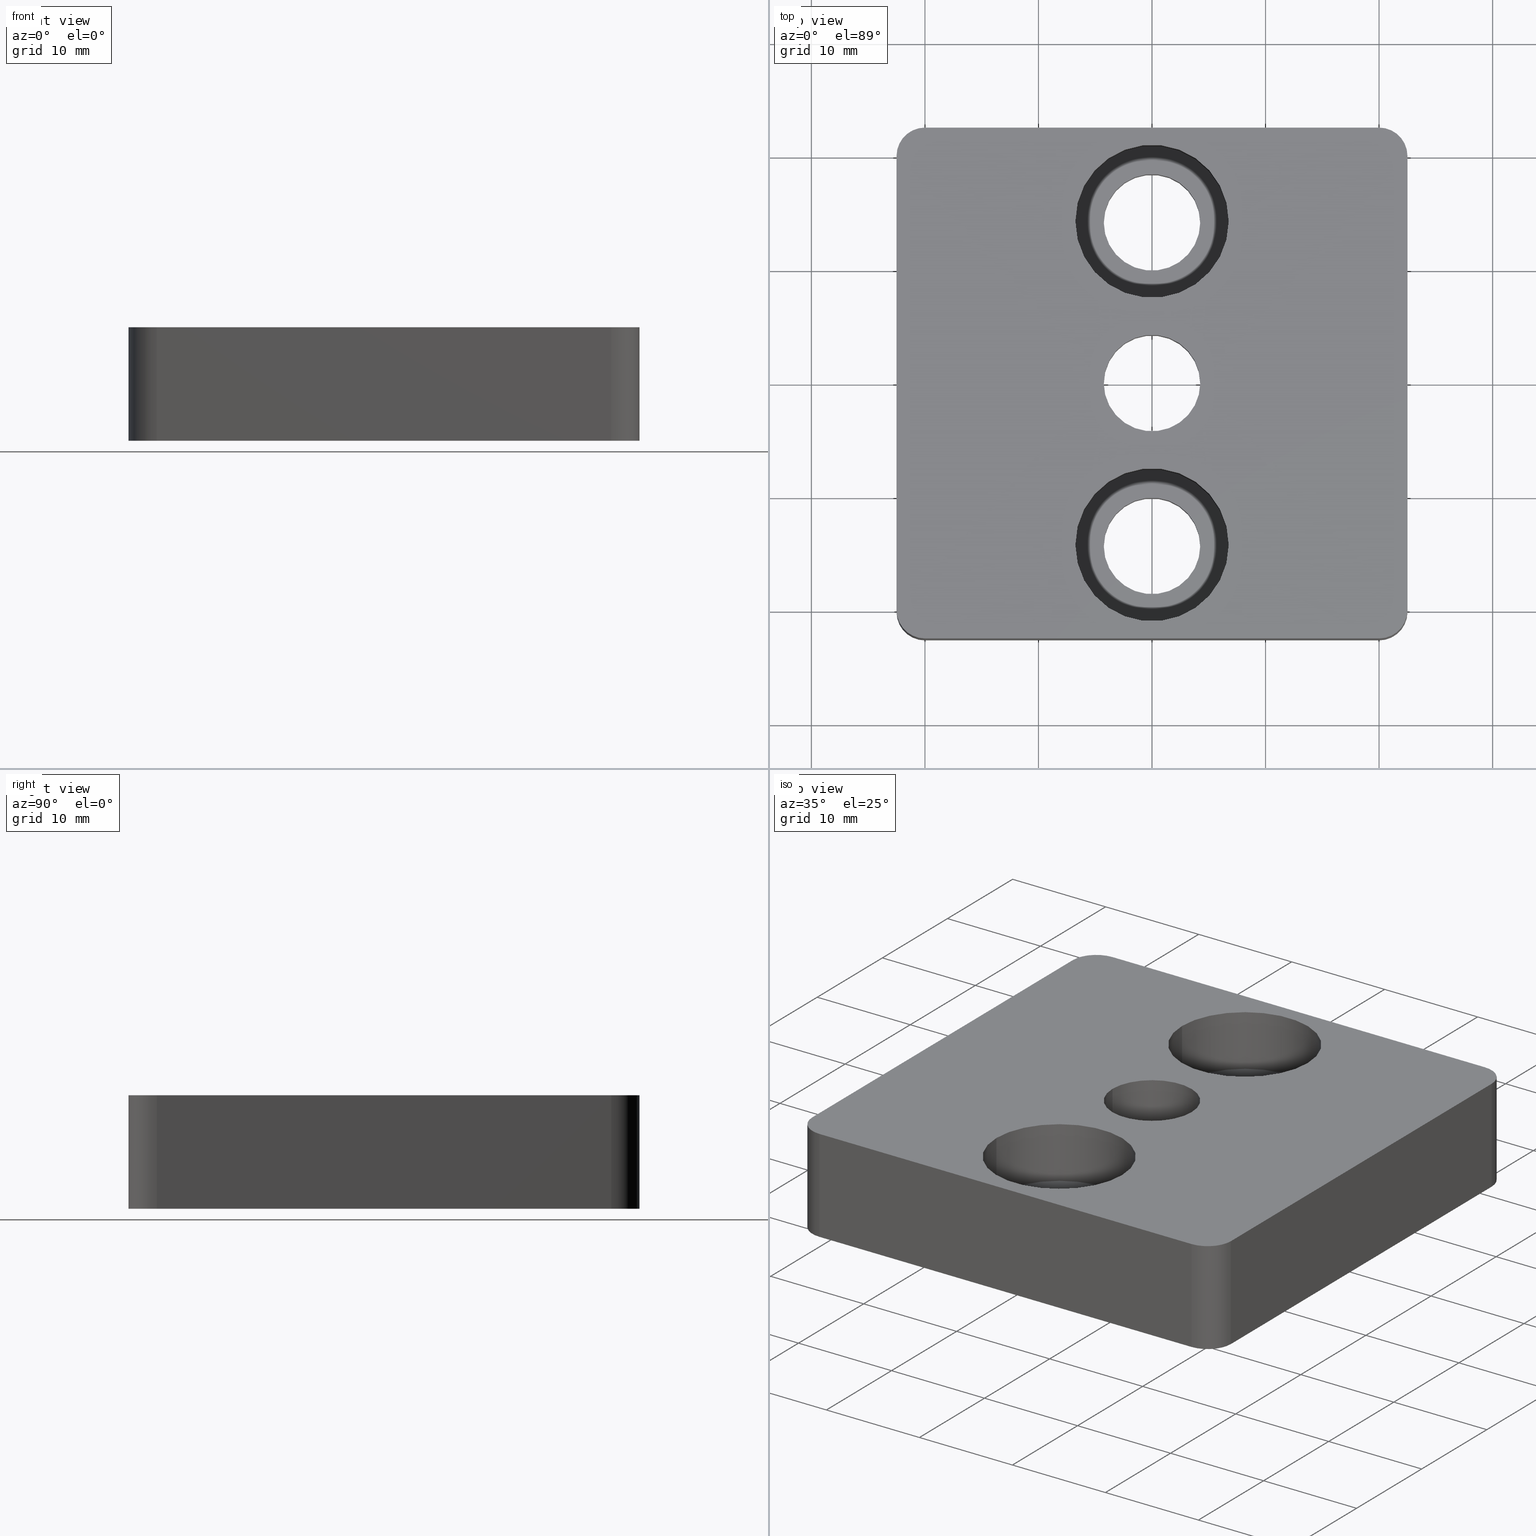
[diagram: canonical four-view strip — front | top / right | iso, engineering-drawing reading convention]
A machine part, canonical four-view strip (front | top / right | iso — engineering-drawing reading convention). The complete STEP part file that produces these views, byte-faithful:
ISO-10303-21;
HEADER;
/* Generated by software containing ST-Developer
 * from STEP Tools, Inc. (www.steptools.com) 
 */

FILE_DESCRIPTION(
/* description */ ('PIASTRA DI FISS SCORR.45X45'),
/* implementation_level */ '2;1');

FILE_NAME(
/* name */ 
'Q:\\Catalogo\\2_Accessori Dierre\\Per Download Web e catalogo cartace
o\\CATALOGO ELEMENTI ASSEMBLAGGIO\\PAGINA 39\\DPSXX0000491.stp',
/* time_stamp */ '2018-07-20T11:00:21+02:00',
/* author */ ('fzagni'),
/* organization */ (''),
/* preprocessor_version */ 'ST-DEVELOPER v16.1',
/* originating_system */ 'Autodesk Inventor 2016',
/* authorisation */ '');

FILE_SCHEMA (('AUTOMOTIVE_DESIGN { 1 0 10303 214 3 1 1 }'));
ENDSEC;

DATA;
#10=MECHANICAL_DESIGN_GEOMETRIC_PRESENTATION_REPRESENTATION('',(#13),#533);
#11=SHAPE_REPRESENTATION_RELATIONSHIP('SRR','None',#542,#12);
#12=ADVANCED_BREP_SHAPE_REPRESENTATION('',(#14),#532);
#13=STYLED_ITEM('',(#551),#14);
#14=MANIFOLD_SOLID_BREP('None',#309);
#15=FACE_BOUND('',#67,.T.);
#16=FACE_BOUND('',#68,.T.);
#17=FACE_BOUND('',#69,.T.);
#18=FACE_BOUND('',#71,.T.);
#19=FACE_BOUND('',#72,.T.);
#20=FACE_BOUND('',#73,.T.);
#21=FACE_BOUND('',#75,.T.);
#22=FACE_BOUND('',#77,.T.);
#23=FACE_BOUND('',#79,.T.);
#24=FACE_BOUND('',#81,.T.);
#25=FACE_BOUND('',#83,.T.);
#26=FACE_BOUND('',#85,.T.);
#27=FACE_BOUND('',#87,.T.);
#28=FACE_BOUND('',#89,.T.);
#29=FACE_BOUND('',#91,.T.);
#30=PLANE('',#314);
#31=PLANE('',#318);
#32=PLANE('',#322);
#33=PLANE('',#326);
#34=PLANE('',#327);
#35=PLANE('',#331);
#36=PLANE('',#337);
#37=PLANE('',#342);
#38=PLANE('',#347);
#39=FACE_OUTER_BOUND('',#58,.T.);
#40=FACE_OUTER_BOUND('',#59,.T.);
#41=FACE_OUTER_BOUND('',#60,.T.);
#42=FACE_OUTER_BOUND('',#61,.T.);
#43=FACE_OUTER_BOUND('',#62,.T.);
#44=FACE_OUTER_BOUND('',#63,.T.);
#45=FACE_OUTER_BOUND('',#64,.T.);
#46=FACE_OUTER_BOUND('',#65,.T.);
#47=FACE_OUTER_BOUND('',#66,.T.);
#48=FACE_OUTER_BOUND('',#70,.T.);
#49=FACE_OUTER_BOUND('',#74,.T.);
#50=FACE_OUTER_BOUND('',#76,.T.);
#51=FACE_OUTER_BOUND('',#78,.T.);
#52=FACE_OUTER_BOUND('',#80,.T.);
#53=FACE_OUTER_BOUND('',#82,.T.);
#54=FACE_OUTER_BOUND('',#84,.T.);
#55=FACE_OUTER_BOUND('',#86,.T.);
#56=FACE_OUTER_BOUND('',#88,.T.);
#57=FACE_OUTER_BOUND('',#90,.T.);
#58=EDGE_LOOP('',(#208,#209,#210,#211));
#59=EDGE_LOOP('',(#212,#213,#214,#215));
#60=EDGE_LOOP('',(#216,#217,#218,#219));
#61=EDGE_LOOP('',(#220,#221,#222,#223));
#62=EDGE_LOOP('',(#224,#225,#226,#227));
#63=EDGE_LOOP('',(#228,#229,#230,#231));
#64=EDGE_LOOP('',(#232,#233,#234,#235));
#65=EDGE_LOOP('',(#236,#237,#238,#239));
#66=EDGE_LOOP('',(#240,#241,#242,#243,#244,#245,#246,#247));
#67=EDGE_LOOP('',(#248));
#68=EDGE_LOOP('',(#249));
#69=EDGE_LOOP('',(#250));
#70=EDGE_LOOP('',(#251,#252,#253,#254,#255,#256,#257,#258));
#71=EDGE_LOOP('',(#259));
#72=EDGE_LOOP('',(#260));
#73=EDGE_LOOP('',(#261));
#74=EDGE_LOOP('',(#262));
#75=EDGE_LOOP('',(#263));
#76=EDGE_LOOP('',(#264));
#77=EDGE_LOOP('',(#265));
#78=EDGE_LOOP('',(#266));
#79=EDGE_LOOP('',(#267));
#80=EDGE_LOOP('',(#268));
#81=EDGE_LOOP('',(#269));
#82=EDGE_LOOP('',(#270));
#83=EDGE_LOOP('',(#271));
#84=EDGE_LOOP('',(#272));
#85=EDGE_LOOP('',(#273));
#86=EDGE_LOOP('',(#274));
#87=EDGE_LOOP('',(#275));
#88=EDGE_LOOP('',(#276));
#89=EDGE_LOOP('',(#277));
#90=EDGE_LOOP('',(#278));
#91=EDGE_LOOP('',(#279));
#92=CIRCLE('',#312,2.49999999999);
#93=CIRCLE('',#313,2.49999999999);
#94=CIRCLE('',#316,2.49999999999);
#95=CIRCLE('',#317,2.49999999999);
#96=CIRCLE('',#320,2.49999999999);
#97=CIRCLE('',#321,2.49999999999);
#98=CIRCLE('',#324,2.49999999999);
#99=CIRCLE('',#325,2.49999999999);
#100=CIRCLE('',#328,6.74999999997317);
#101=CIRCLE('',#329,6.74999999997317);
#102=CIRCLE('',#330,4.24999999998317);
#103=CIRCLE('',#332,4.24999999998317);
#104=CIRCLE('',#333,4.24999999998317);
#105=CIRCLE('',#334,6.74999999997317);
#106=CIRCLE('',#336,4.24999999998317);
#107=CIRCLE('',#338,6.74999999997317);
#108=CIRCLE('',#341,4.24999999998317);
#109=CIRCLE('',#343,6.74999999997317);
#110=CIRCLE('',#346,4.24999999998317);
#111=CIRCLE('',#348,6.74999999997317);
#112=LINE('',#450,#128);
#113=LINE('',#454,#129);
#114=LINE('',#458,#130);
#115=LINE('',#460,#131);
#116=LINE('',#461,#132);
#117=LINE('',#466,#133);
#118=LINE('',#470,#134);
#119=LINE('',#472,#135);
#120=LINE('',#473,#136);
#121=LINE('',#478,#137);
#122=LINE('',#482,#138);
#123=LINE('',#484,#139);
#124=LINE('',#485,#140);
#125=LINE('',#490,#141);
#126=LINE('',#493,#142);
#127=LINE('',#494,#143);
#128=VECTOR('',#354,10.);
#129=VECTOR('',#357,10.);
#130=VECTOR('',#362,39.9999999998399);
#131=VECTOR('',#363,10.);
#132=VECTOR('',#364,39.9999999998399);
#133=VECTOR('',#369,10.);
#134=VECTOR('',#374,39.9999999998399);
#135=VECTOR('',#375,10.);
#136=VECTOR('',#376,39.9999999998399);
#137=VECTOR('',#381,10.);
#138=VECTOR('',#386,39.9999999998399);
#139=VECTOR('',#387,10.);
#140=VECTOR('',#388,39.9999999998399);
#141=VECTOR('',#393,10.);
#142=VECTOR('',#398,39.9999999998399);
#143=VECTOR('',#399,39.9999999998399);
#144=VERTEX_POINT('',#448);
#145=VERTEX_POINT('',#449);
#146=VERTEX_POINT('',#451);
#147=VERTEX_POINT('',#453);
#148=VERTEX_POINT('',#457);
#149=VERTEX_POINT('',#459);
#150=VERTEX_POINT('',#463);
#151=VERTEX_POINT('',#465);
#152=VERTEX_POINT('',#469);
#153=VERTEX_POINT('',#471);
#154=VERTEX_POINT('',#475);
#155=VERTEX_POINT('',#477);
#156=VERTEX_POINT('',#481);
#157=VERTEX_POINT('',#483);
#158=VERTEX_POINT('',#487);
#159=VERTEX_POINT('',#489);
#160=VERTEX_POINT('',#496);
#161=VERTEX_POINT('',#498);
#162=VERTEX_POINT('',#500);
#163=VERTEX_POINT('',#503);
#164=VERTEX_POINT('',#505);
#165=VERTEX_POINT('',#507);
#166=VERTEX_POINT('',#510);
#167=VERTEX_POINT('',#513);
#168=VERTEX_POINT('',#517);
#169=VERTEX_POINT('',#520);
#170=VERTEX_POINT('',#524);
#171=VERTEX_POINT('',#527);
#172=EDGE_CURVE('',#144,#145,#112,.T.);
#173=EDGE_CURVE('',#145,#146,#92,.T.);
#174=EDGE_CURVE('',#147,#146,#113,.T.);
#175=EDGE_CURVE('',#144,#147,#93,.T.);
#176=EDGE_CURVE('',#146,#148,#114,.T.);
#177=EDGE_CURVE('',#149,#148,#115,.T.);
#178=EDGE_CURVE('',#147,#149,#116,.T.);
#179=EDGE_CURVE('',#148,#150,#94,.T.);
#180=EDGE_CURVE('',#151,#150,#117,.T.);
#181=EDGE_CURVE('',#149,#151,#95,.T.);
#182=EDGE_CURVE('',#150,#152,#118,.T.);
#183=EDGE_CURVE('',#153,#152,#119,.T.);
#184=EDGE_CURVE('',#151,#153,#120,.T.);
#185=EDGE_CURVE('',#152,#154,#96,.T.);
#186=EDGE_CURVE('',#155,#154,#121,.T.);
#187=EDGE_CURVE('',#153,#155,#97,.T.);
#188=EDGE_CURVE('',#154,#156,#122,.T.);
#189=EDGE_CURVE('',#157,#156,#123,.T.);
#190=EDGE_CURVE('',#155,#157,#124,.T.);
#191=EDGE_CURVE('',#156,#158,#98,.T.);
#192=EDGE_CURVE('',#159,#158,#125,.T.);
#193=EDGE_CURVE('',#157,#159,#99,.T.);
#194=EDGE_CURVE('',#158,#145,#126,.T.);
#195=EDGE_CURVE('',#159,#144,#127,.T.);
#196=EDGE_CURVE('',#160,#160,#100,.T.);
#197=EDGE_CURVE('',#161,#161,#101,.T.);
#198=EDGE_CURVE('',#162,#162,#102,.T.);
#199=EDGE_CURVE('',#163,#163,#103,.T.);
#200=EDGE_CURVE('',#164,#164,#104,.T.);
#201=EDGE_CURVE('',#165,#165,#105,.T.);
#202=EDGE_CURVE('',#166,#166,#106,.T.);
#203=EDGE_CURVE('',#167,#167,#107,.T.);
#204=EDGE_CURVE('',#168,#168,#108,.T.);
#205=EDGE_CURVE('',#169,#169,#109,.T.);
#206=EDGE_CURVE('',#170,#170,#110,.T.);
#207=EDGE_CURVE('',#171,#171,#111,.T.);
#208=ORIENTED_EDGE('',*,*,#172,.T.);
#209=ORIENTED_EDGE('',*,*,#173,.T.);
#210=ORIENTED_EDGE('',*,*,#174,.F.);
#211=ORIENTED_EDGE('',*,*,#175,.F.);
#212=ORIENTED_EDGE('',*,*,#174,.T.);
#213=ORIENTED_EDGE('',*,*,#176,.T.);
#214=ORIENTED_EDGE('',*,*,#177,.F.);
#215=ORIENTED_EDGE('',*,*,#178,.F.);
#216=ORIENTED_EDGE('',*,*,#177,.T.);
#217=ORIENTED_EDGE('',*,*,#179,.T.);
#218=ORIENTED_EDGE('',*,*,#180,.F.);
#219=ORIENTED_EDGE('',*,*,#181,.F.);
#220=ORIENTED_EDGE('',*,*,#180,.T.);
#221=ORIENTED_EDGE('',*,*,#182,.T.);
#222=ORIENTED_EDGE('',*,*,#183,.F.);
#223=ORIENTED_EDGE('',*,*,#184,.F.);
#224=ORIENTED_EDGE('',*,*,#183,.T.);
#225=ORIENTED_EDGE('',*,*,#185,.T.);
#226=ORIENTED_EDGE('',*,*,#186,.F.);
#227=ORIENTED_EDGE('',*,*,#187,.F.);
#228=ORIENTED_EDGE('',*,*,#186,.T.);
#229=ORIENTED_EDGE('',*,*,#188,.T.);
#230=ORIENTED_EDGE('',*,*,#189,.F.);
#231=ORIENTED_EDGE('',*,*,#190,.F.);
#232=ORIENTED_EDGE('',*,*,#189,.T.);
#233=ORIENTED_EDGE('',*,*,#191,.T.);
#234=ORIENTED_EDGE('',*,*,#192,.F.);
#235=ORIENTED_EDGE('',*,*,#193,.F.);
#236=ORIENTED_EDGE('',*,*,#192,.T.);
#237=ORIENTED_EDGE('',*,*,#194,.T.);
#238=ORIENTED_EDGE('',*,*,#172,.F.);
#239=ORIENTED_EDGE('',*,*,#195,.F.);
#240=ORIENTED_EDGE('',*,*,#175,.T.);
#241=ORIENTED_EDGE('',*,*,#178,.T.);
#242=ORIENTED_EDGE('',*,*,#181,.T.);
#243=ORIENTED_EDGE('',*,*,#184,.T.);
#244=ORIENTED_EDGE('',*,*,#187,.T.);
#245=ORIENTED_EDGE('',*,*,#190,.T.);
#246=ORIENTED_EDGE('',*,*,#193,.T.);
#247=ORIENTED_EDGE('',*,*,#195,.T.);
#248=ORIENTED_EDGE('',*,*,#196,.F.);
#249=ORIENTED_EDGE('',*,*,#197,.F.);
#250=ORIENTED_EDGE('',*,*,#198,.F.);
#251=ORIENTED_EDGE('',*,*,#194,.F.);
#252=ORIENTED_EDGE('',*,*,#191,.F.);
#253=ORIENTED_EDGE('',*,*,#188,.F.);
#254=ORIENTED_EDGE('',*,*,#185,.F.);
#255=ORIENTED_EDGE('',*,*,#182,.F.);
#256=ORIENTED_EDGE('',*,*,#179,.F.);
#257=ORIENTED_EDGE('',*,*,#176,.F.);
#258=ORIENTED_EDGE('',*,*,#173,.F.);
#259=ORIENTED_EDGE('',*,*,#199,.T.);
#260=ORIENTED_EDGE('',*,*,#200,.T.);
#261=ORIENTED_EDGE('',*,*,#201,.F.);
#262=ORIENTED_EDGE('',*,*,#199,.F.);
#263=ORIENTED_EDGE('',*,*,#202,.T.);
#264=ORIENTED_EDGE('',*,*,#203,.T.);
#265=ORIENTED_EDGE('',*,*,#202,.F.);
#266=ORIENTED_EDGE('',*,*,#196,.T.);
#267=ORIENTED_EDGE('',*,*,#203,.F.);
#268=ORIENTED_EDGE('',*,*,#200,.F.);
#269=ORIENTED_EDGE('',*,*,#204,.T.);
#270=ORIENTED_EDGE('',*,*,#205,.T.);
#271=ORIENTED_EDGE('',*,*,#204,.F.);
#272=ORIENTED_EDGE('',*,*,#197,.T.);
#273=ORIENTED_EDGE('',*,*,#205,.F.);
#274=ORIENTED_EDGE('',*,*,#198,.T.);
#275=ORIENTED_EDGE('',*,*,#206,.T.);
#276=ORIENTED_EDGE('',*,*,#207,.T.);
#277=ORIENTED_EDGE('',*,*,#206,.F.);
#278=ORIENTED_EDGE('',*,*,#201,.T.);
#279=ORIENTED_EDGE('',*,*,#207,.F.);
#280=CYLINDRICAL_SURFACE('',#311,2.49999999999);
#281=CYLINDRICAL_SURFACE('',#315,2.49999999999);
#282=CYLINDRICAL_SURFACE('',#319,2.49999999999);
#283=CYLINDRICAL_SURFACE('',#323,2.49999999999);
#284=CYLINDRICAL_SURFACE('',#335,4.24999999998317);
#285=CYLINDRICAL_SURFACE('',#339,6.74999999997317);
#286=CYLINDRICAL_SURFACE('',#340,4.24999999998317);
#287=CYLINDRICAL_SURFACE('',#344,6.74999999997317);
#288=CYLINDRICAL_SURFACE('',#345,4.24999999998317);
#289=CYLINDRICAL_SURFACE('',#349,6.74999999997317);
#290=ADVANCED_FACE('',(#39),#280,.T.);
#291=ADVANCED_FACE('',(#40),#30,.F.);
#292=ADVANCED_FACE('',(#41),#281,.T.);
#293=ADVANCED_FACE('',(#42),#31,.F.);
#294=ADVANCED_FACE('',(#43),#282,.T.);
#295=ADVANCED_FACE('',(#44),#32,.F.);
#296=ADVANCED_FACE('',(#45),#283,.T.);
#297=ADVANCED_FACE('',(#46),#33,.F.);
#298=ADVANCED_FACE('',(#47,#15,#16,#17),#34,.T.);
#299=ADVANCED_FACE('',(#48,#18,#19,#20),#35,.F.);
#300=ADVANCED_FACE('',(#49,#21),#284,.F.);
#301=ADVANCED_FACE('',(#50,#22),#36,.F.);
#302=ADVANCED_FACE('',(#51,#23),#285,.F.);
#303=ADVANCED_FACE('',(#52,#24),#286,.F.);
#304=ADVANCED_FACE('',(#53,#25),#37,.F.);
#305=ADVANCED_FACE('',(#54,#26),#287,.F.);
#306=ADVANCED_FACE('',(#55,#27),#288,.F.);
#307=ADVANCED_FACE('',(#56,#28),#38,.F.);
#308=ADVANCED_FACE('',(#57,#29),#289,.F.);
#309=CLOSED_SHELL('',(#290,#291,#292,#293,#294,#295,#296,#297,#298,#299,
#300,#301,#302,#303,#304,#305,#306,#307,#308));
#310=AXIS2_PLACEMENT_3D('placement',#446,#350,#351);
#311=AXIS2_PLACEMENT_3D('',#447,#352,#353);
#312=AXIS2_PLACEMENT_3D('',#452,#355,#356);
#313=AXIS2_PLACEMENT_3D('',#455,#358,#359);
#314=AXIS2_PLACEMENT_3D('',#456,#360,#361);
#315=AXIS2_PLACEMENT_3D('',#462,#365,#366);
#316=AXIS2_PLACEMENT_3D('',#464,#367,#368);
#317=AXIS2_PLACEMENT_3D('',#467,#370,#371);
#318=AXIS2_PLACEMENT_3D('',#468,#372,#373);
#319=AXIS2_PLACEMENT_3D('',#474,#377,#378);
#320=AXIS2_PLACEMENT_3D('',#476,#379,#380);
#321=AXIS2_PLACEMENT_3D('',#479,#382,#383);
#322=AXIS2_PLACEMENT_3D('',#480,#384,#385);
#323=AXIS2_PLACEMENT_3D('',#486,#389,#390);
#324=AXIS2_PLACEMENT_3D('',#488,#391,#392);
#325=AXIS2_PLACEMENT_3D('',#491,#394,#395);
#326=AXIS2_PLACEMENT_3D('',#492,#396,#397);
#327=AXIS2_PLACEMENT_3D('',#495,#400,#401);
#328=AXIS2_PLACEMENT_3D('',#497,#402,#403);
#329=AXIS2_PLACEMENT_3D('',#499,#404,#405);
#330=AXIS2_PLACEMENT_3D('',#501,#406,#407);
#331=AXIS2_PLACEMENT_3D('',#502,#408,#409);
#332=AXIS2_PLACEMENT_3D('',#504,#410,#411);
#333=AXIS2_PLACEMENT_3D('',#506,#412,#413);
#334=AXIS2_PLACEMENT_3D('',#508,#414,#415);
#335=AXIS2_PLACEMENT_3D('',#509,#416,#417);
#336=AXIS2_PLACEMENT_3D('',#511,#418,#419);
#337=AXIS2_PLACEMENT_3D('',#512,#420,#421);
#338=AXIS2_PLACEMENT_3D('',#514,#422,#423);
#339=AXIS2_PLACEMENT_3D('',#515,#424,#425);
#340=AXIS2_PLACEMENT_3D('',#516,#426,#427);
#341=AXIS2_PLACEMENT_3D('',#518,#428,#429);
#342=AXIS2_PLACEMENT_3D('',#519,#430,#431);
#343=AXIS2_PLACEMENT_3D('',#521,#432,#433);
#344=AXIS2_PLACEMENT_3D('',#522,#434,#435);
#345=AXIS2_PLACEMENT_3D('',#523,#436,#437);
#346=AXIS2_PLACEMENT_3D('',#525,#438,#439);
#347=AXIS2_PLACEMENT_3D('',#526,#440,#441);
#348=AXIS2_PLACEMENT_3D('',#528,#442,#443);
#349=AXIS2_PLACEMENT_3D('',#529,#444,#445);
#350=DIRECTION('axis',(0.,0.,1.));
#351=DIRECTION('refdir',(1.,0.,0.));
#352=DIRECTION('center_axis',(0.,0.,1.));
#353=DIRECTION('ref_axis',(0.,-1.,0.));
#354=DIRECTION('',(0.,0.,-1.));
#355=DIRECTION('center_axis',(0.,0.,1.));
#356=DIRECTION('ref_axis',(1.,0.,0.));
#357=DIRECTION('',(0.,0.,-1.));
#358=DIRECTION('center_axis',(0.,0.,1.));
#359=DIRECTION('ref_axis',(1.,0.,0.));
#360=DIRECTION('center_axis',(-1.,0.,0.));
#361=DIRECTION('ref_axis',(0.,0.,1.));
#362=DIRECTION('',(0.,1.,0.));
#363=DIRECTION('',(0.,0.,-1.));
#364=DIRECTION('',(0.,1.,0.));
#365=DIRECTION('center_axis',(0.,0.,1.));
#366=DIRECTION('ref_axis',(1.,0.,0.));
#367=DIRECTION('center_axis',(0.,0.,1.));
#368=DIRECTION('ref_axis',(1.,0.,0.));
#369=DIRECTION('',(0.,0.,-1.));
#370=DIRECTION('center_axis',(0.,0.,1.));
#371=DIRECTION('ref_axis',(1.,0.,0.));
#372=DIRECTION('center_axis',(0.,-1.,0.));
#373=DIRECTION('ref_axis',(0.,0.,-1.));
#374=DIRECTION('',(-1.,0.,0.));
#375=DIRECTION('',(0.,0.,-1.));
#376=DIRECTION('',(-1.,0.,0.));
#377=DIRECTION('center_axis',(0.,0.,1.));
#378=DIRECTION('ref_axis',(1.,0.,0.));
#379=DIRECTION('center_axis',(0.,0.,1.));
#380=DIRECTION('ref_axis',(1.,0.,0.));
#381=DIRECTION('',(0.,0.,-1.));
#382=DIRECTION('center_axis',(0.,0.,1.));
#383=DIRECTION('ref_axis',(1.,0.,0.));
#384=DIRECTION('center_axis',(1.,0.,0.));
#385=DIRECTION('ref_axis',(0.,0.,-1.));
#386=DIRECTION('',(0.,-1.,0.));
#387=DIRECTION('',(0.,0.,-1.));
#388=DIRECTION('',(0.,-1.,0.));
#389=DIRECTION('center_axis',(0.,0.,1.));
#390=DIRECTION('ref_axis',(1.,0.,0.));
#391=DIRECTION('center_axis',(0.,0.,1.));
#392=DIRECTION('ref_axis',(1.,0.,0.));
#393=DIRECTION('',(0.,0.,-1.));
#394=DIRECTION('center_axis',(0.,0.,1.));
#395=DIRECTION('ref_axis',(1.,0.,0.));
#396=DIRECTION('center_axis',(0.,1.,0.));
#397=DIRECTION('ref_axis',(0.,0.,1.));
#398=DIRECTION('',(1.,0.,0.));
#399=DIRECTION('',(1.,0.,0.));
#400=DIRECTION('center_axis',(0.,0.,1.));
#401=DIRECTION('ref_axis',(1.,0.,0.));
#402=DIRECTION('center_axis',(0.,0.,1.));
#403=DIRECTION('ref_axis',(1.,0.,0.));
#404=DIRECTION('center_axis',(0.,0.,1.));
#405=DIRECTION('ref_axis',(1.,0.,0.));
#406=DIRECTION('center_axis',(0.,0.,1.));
#407=DIRECTION('ref_axis',(1.,0.,0.));
#408=DIRECTION('center_axis',(0.,0.,1.));
#409=DIRECTION('ref_axis',(1.,0.,0.));
#410=DIRECTION('center_axis',(0.,0.,1.));
#411=DIRECTION('ref_axis',(1.,0.,0.));
#412=DIRECTION('center_axis',(0.,0.,1.));
#413=DIRECTION('ref_axis',(1.,0.,0.));
#414=DIRECTION('center_axis',(0.,0.,-1.));
#415=DIRECTION('ref_axis',(1.,0.,0.));
#416=DIRECTION('center_axis',(0.,0.,1.));
#417=DIRECTION('ref_axis',(1.,0.,0.));
#418=DIRECTION('center_axis',(0.,0.,1.));
#419=DIRECTION('ref_axis',(1.,0.,0.));
#420=DIRECTION('center_axis',(0.,0.,-1.));
#421=DIRECTION('ref_axis',(-1.,0.,0.));
#422=DIRECTION('center_axis',(0.,0.,1.));
#423=DIRECTION('ref_axis',(1.,0.,0.));
#424=DIRECTION('center_axis',(0.,0.,1.));
#425=DIRECTION('ref_axis',(1.,0.,0.));
#426=DIRECTION('center_axis',(0.,0.,1.));
#427=DIRECTION('ref_axis',(1.,0.,0.));
#428=DIRECTION('center_axis',(0.,0.,1.));
#429=DIRECTION('ref_axis',(1.,0.,0.));
#430=DIRECTION('center_axis',(0.,0.,-1.));
#431=DIRECTION('ref_axis',(-1.,0.,0.));
#432=DIRECTION('center_axis',(0.,0.,1.));
#433=DIRECTION('ref_axis',(1.,0.,0.));
#434=DIRECTION('center_axis',(0.,0.,1.));
#435=DIRECTION('ref_axis',(1.,0.,0.));
#436=DIRECTION('center_axis',(0.,0.,-1.));
#437=DIRECTION('ref_axis',(1.,0.,0.));
#438=DIRECTION('center_axis',(0.,0.,-1.));
#439=DIRECTION('ref_axis',(1.,0.,0.));
#440=DIRECTION('center_axis',(0.,0.,1.));
#441=DIRECTION('ref_axis',(1.,0.,0.));
#442=DIRECTION('center_axis',(0.,0.,-1.));
#443=DIRECTION('ref_axis',(1.,0.,0.));
#444=DIRECTION('center_axis',(0.,0.,-1.));
#445=DIRECTION('ref_axis',(1.,0.,0.));
#446=CARTESIAN_POINT('',(0.,0.,0.));
#447=CARTESIAN_POINT('Origin',(19.99999999992,-19.99999999992,0.));
#448=CARTESIAN_POINT('',(19.99999999992,-22.49999999991,0.));
#449=CARTESIAN_POINT('',(19.99999999992,-22.49999999991,-10.));
#450=CARTESIAN_POINT('',(19.99999999992,-22.49999999991,0.));
#451=CARTESIAN_POINT('',(22.49999999991,-19.99999999992,-10.));
#452=CARTESIAN_POINT('Origin',(19.99999999992,-19.99999999992,-10.));
#453=CARTESIAN_POINT('',(22.49999999991,-19.99999999992,0.));
#454=CARTESIAN_POINT('',(22.49999999991,-19.99999999992,0.));
#455=CARTESIAN_POINT('Origin',(19.99999999992,-19.99999999992,0.));
#456=CARTESIAN_POINT('Origin',(22.49999999991,-19.99999999992,0.));
#457=CARTESIAN_POINT('',(22.49999999991,19.99999999992,-10.));
#458=CARTESIAN_POINT('',(22.49999999991,-19.99999999992,-10.));
#459=CARTESIAN_POINT('',(22.49999999991,19.99999999992,0.));
#460=CARTESIAN_POINT('',(22.49999999991,19.99999999992,0.));
#461=CARTESIAN_POINT('',(22.49999999991,-19.99999999992,0.));
#462=CARTESIAN_POINT('Origin',(19.99999999992,19.99999999992,0.));
#463=CARTESIAN_POINT('',(19.99999999992,22.49999999991,-10.));
#464=CARTESIAN_POINT('Origin',(19.99999999992,19.99999999992,-10.));
#465=CARTESIAN_POINT('',(19.99999999992,22.49999999991,0.));
#466=CARTESIAN_POINT('',(19.99999999992,22.49999999991,0.));
#467=CARTESIAN_POINT('Origin',(19.99999999992,19.99999999992,0.));
#468=CARTESIAN_POINT('Origin',(19.99999999992,22.49999999991,0.));
#469=CARTESIAN_POINT('',(-19.99999999992,22.49999999991,-10.));
#470=CARTESIAN_POINT('',(19.99999999992,22.49999999991,-10.));
#471=CARTESIAN_POINT('',(-19.99999999992,22.49999999991,0.));
#472=CARTESIAN_POINT('',(-19.99999999992,22.49999999991,0.));
#473=CARTESIAN_POINT('',(19.99999999992,22.49999999991,0.));
#474=CARTESIAN_POINT('Origin',(-19.99999999992,19.99999999992,0.));
#475=CARTESIAN_POINT('',(-22.49999999991,19.99999999992,-10.));
#476=CARTESIAN_POINT('Origin',(-19.99999999992,19.99999999992,-10.));
#477=CARTESIAN_POINT('',(-22.49999999991,19.99999999992,0.));
#478=CARTESIAN_POINT('',(-22.49999999991,19.99999999992,0.));
#479=CARTESIAN_POINT('Origin',(-19.99999999992,19.99999999992,0.));
#480=CARTESIAN_POINT('Origin',(-22.49999999991,19.99999999992,0.));
#481=CARTESIAN_POINT('',(-22.49999999991,-19.99999999992,-10.));
#482=CARTESIAN_POINT('',(-22.49999999991,19.99999999992,-10.));
#483=CARTESIAN_POINT('',(-22.49999999991,-19.99999999992,0.));
#484=CARTESIAN_POINT('',(-22.49999999991,-19.99999999992,0.));
#485=CARTESIAN_POINT('',(-22.49999999991,19.99999999992,0.));
#486=CARTESIAN_POINT('Origin',(-19.99999999992,-19.99999999992,0.));
#487=CARTESIAN_POINT('',(-19.99999999992,-22.49999999991,-10.));
#488=CARTESIAN_POINT('Origin',(-19.99999999992,-19.99999999992,-10.));
#489=CARTESIAN_POINT('',(-19.99999999992,-22.49999999991,0.));
#490=CARTESIAN_POINT('',(-19.99999999992,-22.49999999991,0.));
#491=CARTESIAN_POINT('Origin',(-19.99999999992,-19.99999999992,0.));
#492=CARTESIAN_POINT('Origin',(-19.99999999992,-22.49999999991,0.));
#493=CARTESIAN_POINT('',(-19.99999999992,-22.49999999991,-10.));
#494=CARTESIAN_POINT('',(-19.99999999992,-22.49999999991,0.));
#495=CARTESIAN_POINT('Origin',(-27.0000047329058,-27.0000047327958,0.));
#496=CARTESIAN_POINT('',(-6.74999999997317,-14.2499999999427,-8.113017E-16));
#497=CARTESIAN_POINT('Origin',(0.,-14.2499999999427,-8.113017E-16));
#498=CARTESIAN_POINT('',(-6.74999999997317,14.2499999999432,-8.113017E-16));
#499=CARTESIAN_POINT('Origin',(0.,14.2499999999432,-8.113017E-16));
#500=CARTESIAN_POINT('',(-4.24999999998317,0.,0.));
#501=CARTESIAN_POINT('Origin',(0.,0.,0.));
#502=CARTESIAN_POINT('Origin',(-27.0000047329058,-27.0000047327958,-10.));
#503=CARTESIAN_POINT('',(-4.24999999998317,-14.2499999999427,-10.));
#504=CARTESIAN_POINT('Origin',(0.,-14.2499999999427,-10.));
#505=CARTESIAN_POINT('',(-4.24999999998317,14.2499999999432,-10.));
#506=CARTESIAN_POINT('Origin',(0.,14.2499999999432,-10.));
#507=CARTESIAN_POINT('',(-6.74999999997317,0.,-10.));
#508=CARTESIAN_POINT('Origin',(0.,0.,-10.));
#509=CARTESIAN_POINT('Origin',(0.,-14.2499999999427,-11.000016784668));
#510=CARTESIAN_POINT('',(-4.24999999998317,-14.2499999999427,-5.5));
#511=CARTESIAN_POINT('Origin',(0.,-14.2499999999427,-5.5));
#512=CARTESIAN_POINT('Origin',(-13.4999999999463,-27.7499999998891,-5.5));
#513=CARTESIAN_POINT('',(-6.74999999997317,-14.2499999999427,-5.5));
#514=CARTESIAN_POINT('Origin',(0.,-14.2499999999427,-5.5));
#515=CARTESIAN_POINT('Origin',(0.,-14.2499999999427,-5.5));
#516=CARTESIAN_POINT('Origin',(0.,14.2499999999432,-11.000016784668));
#517=CARTESIAN_POINT('',(-4.24999999998317,14.2499999999432,-5.5));
#518=CARTESIAN_POINT('Origin',(0.,14.2499999999432,-5.5));
#519=CARTESIAN_POINT('Origin',(-13.4999999999463,0.749999999996817,-5.5));
#520=CARTESIAN_POINT('',(-6.74999999997317,14.2499999999432,-5.5));
#521=CARTESIAN_POINT('Origin',(0.,14.2499999999432,-5.5));
#522=CARTESIAN_POINT('Origin',(0.,14.2499999999432,-5.5));
#523=CARTESIAN_POINT('Origin',(0.,0.,1.00001678466798));
#524=CARTESIAN_POINT('',(-4.24999999998317,0.,-4.5));
#525=CARTESIAN_POINT('Origin',(0.,0.,-4.5));
#526=CARTESIAN_POINT('Origin',(-13.4999999999463,13.4999999999463,-4.5));
#527=CARTESIAN_POINT('',(-6.74999999997317,0.,-4.5));
#528=CARTESIAN_POINT('Origin',(0.,0.,-4.5));
#529=CARTESIAN_POINT('Origin',(0.,0.,-4.5));
#530=UNCERTAINTY_MEASURE_WITH_UNIT(LENGTH_MEASURE(0.01),#534,
'DISTANCE_ACCURACY_VALUE',
'Maximum model space distance between geometric entities at asserted c
onnectivities');
#531=UNCERTAINTY_MEASURE_WITH_UNIT(LENGTH_MEASURE(1.E-6),#534,
'DISTANCE_ACCURACY_VALUE',
'Maximum model space distance between geometric entities at asserted c
onnectivities');
#532=(
GEOMETRIC_REPRESENTATION_CONTEXT(3)
GLOBAL_UNCERTAINTY_ASSIGNED_CONTEXT((#530))
GLOBAL_UNIT_ASSIGNED_CONTEXT((#534,#537,#535))
REPRESENTATION_CONTEXT('','3D')
);
#533=(
GEOMETRIC_REPRESENTATION_CONTEXT(3)
GLOBAL_UNCERTAINTY_ASSIGNED_CONTEXT((#531))
GLOBAL_UNIT_ASSIGNED_CONTEXT((#534,#537,#535))
REPRESENTATION_CONTEXT('','3D')
);
#534=(
LENGTH_UNIT()
NAMED_UNIT(*)
SI_UNIT(.MILLI.,.METRE.)
);
#535=(
NAMED_UNIT(*)
SI_UNIT($,.STERADIAN.)
SOLID_ANGLE_UNIT()
);
#536=DIMENSIONAL_EXPONENTS(0.,0.,0.,0.,0.,0.,0.);
#537=(
CONVERSION_BASED_UNIT('degree',#539)
NAMED_UNIT(#536)
PLANE_ANGLE_UNIT()
);
#538=(
NAMED_UNIT(*)
PLANE_ANGLE_UNIT()
SI_UNIT($,.RADIAN.)
);
#539=PLANE_ANGLE_MEASURE_WITH_UNIT(PLANE_ANGLE_MEASURE(0.01745329252),#538);
#540=SHAPE_DEFINITION_REPRESENTATION(#541,#542);
#541=PRODUCT_DEFINITION_SHAPE('',$,#544);
#542=SHAPE_REPRESENTATION('',(#310),#532);
#543=PRODUCT_DEFINITION_CONTEXT('part definition',#548,'design');
#544=PRODUCT_DEFINITION('PROAC107-0','PROAC107-0',#545,#543);
#545=PRODUCT_DEFINITION_FORMATION('','A',#550);
#546=PRODUCT_RELATED_PRODUCT_CATEGORY('PROAC107-0','PROAC107-0',(#550));
#547=APPLICATION_PROTOCOL_DEFINITION('international standard',
'automotive_design',2009,#548);
#548=APPLICATION_CONTEXT(
'Core Data for Automotive Mechanical Design Process');
#549=PRODUCT_CONTEXT('part definition',#548,'mechanical');
#550=PRODUCT('PROAC107-0','PROAC107-0',$,(#549));
#551=PRESENTATION_STYLE_ASSIGNMENT((#552));
#552=SURFACE_STYLE_USAGE(.BOTH.,#553);
#553=SURFACE_SIDE_STYLE('',(#554));
#554=SURFACE_STYLE_FILL_AREA(#555);
#555=FILL_AREA_STYLE('',(#556));
#556=FILL_AREA_STYLE_COLOUR('',#557);
#557=COLOUR_RGB('',0.72156862745098,0.694117647058824,0.705882352941177);
ENDSEC;
END-ISO-10303-21;
